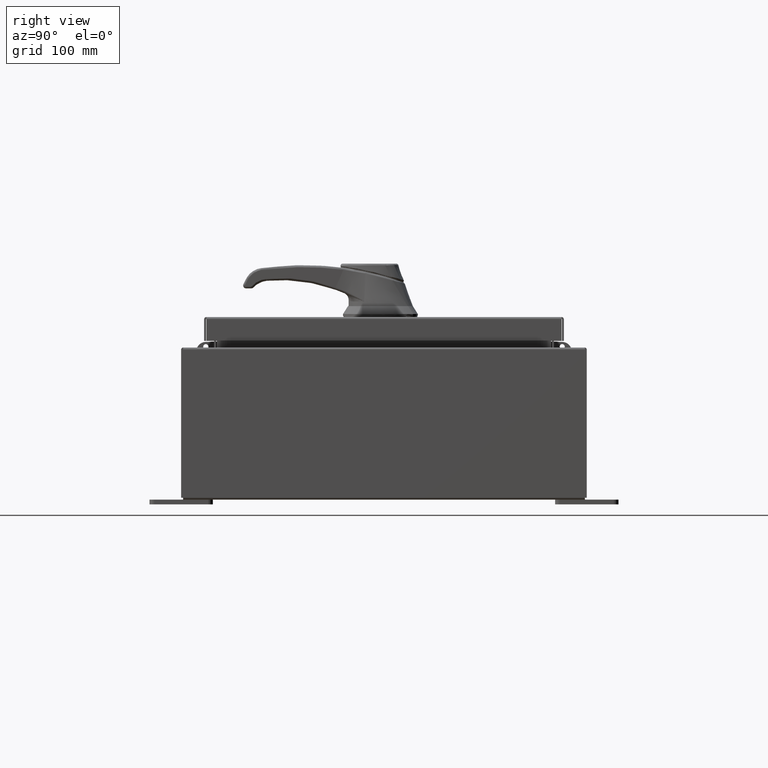
[diagram: clean part render]
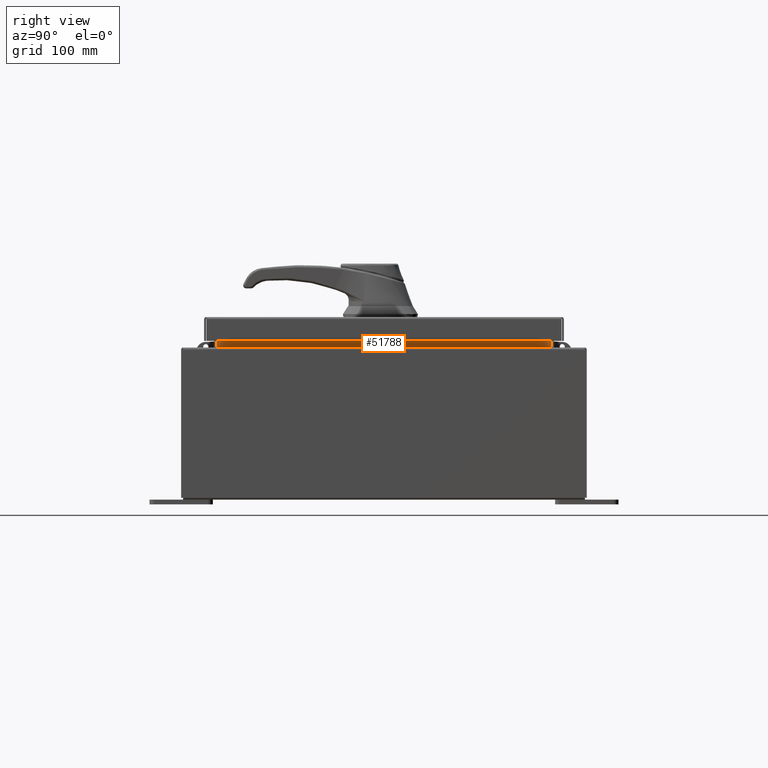
[diagram: same view with one face highlighted and labeled with its STEP entity id]
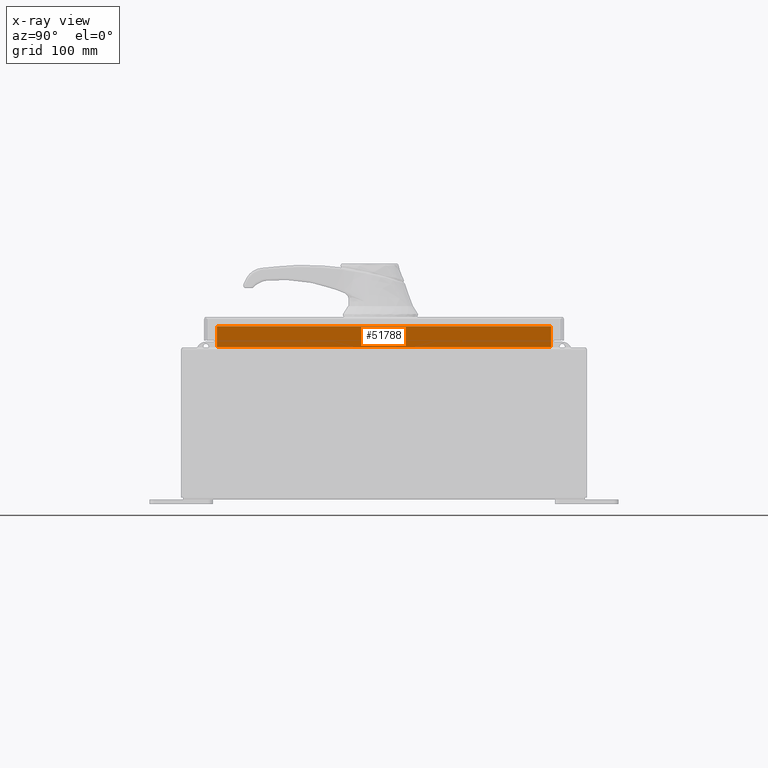
[diagram: x-ray of the same camera — body ghosted, the highlighted face saturated]
A machine part, right view. The second image highlights one B-rep face of the part: STEP entity #51788.
The next image is the same camera in x-ray: the body ghosted, the highlighted face saturated — about 0% of this face is hidden behind the body in this view.
In plain terms, the highlighted planar face has unit normal (1, 0, -0).
Its self-contained STEP definition (entity closure, byte-faithful):
#189 = CARTESIAN_POINT ( 'NONE',  ( 8.699700000000021300, -6.593750000000002700, 6.762900000000009900 ) ) ;
#6272 = LINE ( 'NONE', #33038, #89119 ) ;
#6319 = VECTOR ( 'NONE', #30968, 39.37007874015748100 ) ;
#8938 = VERTEX_POINT ( 'NONE', #58157 ) ;
#12209 = LINE ( 'NONE', #189, #56211 ) ;
#12721 = AXIS2_PLACEMENT_3D ( 'NONE', #79985, #30411, #88261 ) ;
#14101 = LINE ( 'NONE', #14636, #6319 ) ;
#14636 = CARTESIAN_POINT ( 'NONE',  ( 8.699700000000023100, -6.593750000000000900, 6.850600000000010700 ) ) ;
#17170 = VERTEX_POINT ( 'NONE', #90158 ) ;
#20057 = ORIENTED_EDGE ( 'NONE', *, *, #63872, .F. ) ;
#27999 = VERTEX_POINT ( 'NONE', #39459 ) ;
#30411 = DIRECTION ( 'NONE',  ( 1.000000000000000000, 0.0000000000000000000, -3.542869979895294000E-015 ) ) ;
#30968 = DIRECTION ( 'NONE',  ( 3.542869979895298400E-015, -0.0000000000000000000, 1.000000000000000000 ) ) ;
#31625 = VECTOR ( 'NONE', #82353, 39.37007874015748100 ) ;
#33038 = CARTESIAN_POINT ( 'NONE',  ( 8.699700000000021300, 6.593750000000000000, 5.938300000000010600 ) ) ;
#34175 = LINE ( 'NONE', #57715, #31625 ) ;
#35846 = ORIENTED_EDGE ( 'NONE', *, *, #63889, .F. ) ;
#39336 = ORIENTED_EDGE ( 'NONE', *, *, #78495, .F. ) ;
#39459 = CARTESIAN_POINT ( 'NONE',  ( 8.699700000000023100, -6.593750000000000900, 6.762900000000009900 ) ) ;
#51788 = ADVANCED_FACE ( 'NONE', ( #106889 ), #96257, .T. ) ;
#56211 = VECTOR ( 'NONE', #82700, 39.37007874015748100 ) ;
#57216 = VERTEX_POINT ( 'NONE', #82519 ) ;
#57715 = CARTESIAN_POINT ( 'NONE',  ( 8.699700000000019500, 6.593750000000000000, 5.925300000000009800 ) ) ;
#58157 = CARTESIAN_POINT ( 'NONE',  ( 8.699700000000019500, 6.593750000000000000, 5.938300000000012300 ) ) ;
#63872 = EDGE_CURVE ( 'NONE', #57216, #8938, #34175, .T. ) ;
#63889 = EDGE_CURVE ( 'NONE', #27999, #57216, #12209, .T. ) ;
#78495 = EDGE_CURVE ( 'NONE', #17170, #27999, #14101, .T. ) ;
#79985 = CARTESIAN_POINT ( 'NONE',  ( 8.699699999999998200, 0.0000000000000000000, -3.082190596409509000E-014 ) ) ;
#82353 = DIRECTION ( 'NONE',  ( -3.542869979895294000E-015, -0.0000000000000000000, -1.000000000000000000 ) ) ;
#82519 = CARTESIAN_POINT ( 'NONE',  ( 8.699700000000021300, 6.593750000000000000, 6.762900000000009900 ) ) ;
#82700 = DIRECTION ( 'NONE',  ( 0.0000000000000000000, 1.000000000000000000, 0.0000000000000000000 ) ) ;
#88261 = DIRECTION ( 'NONE',  ( -3.542869979895294000E-015, 0.0000000000000000000, -1.000000000000000000 ) ) ;
#89119 = VECTOR ( 'NONE', #90925, 39.37007874015748100 ) ;
#90158 = CARTESIAN_POINT ( 'NONE',  ( 8.699700000000019500, -6.593750000000000900, 5.938300000000012300 ) ) ;
#90925 = DIRECTION ( 'NONE',  ( 8.286174009218617400E-017, -1.000000000000000000, 2.485852202765585000E-016 ) ) ;
#95440 = EDGE_LOOP ( 'NONE', ( #20057, #35846, #39336, #105767 ) ) ;
#96257 = PLANE ( 'NONE',  #12721 ) ;
#105650 = EDGE_CURVE ( 'NONE', #8938, #17170, #6272, .T. ) ;
#105767 = ORIENTED_EDGE ( 'NONE', *, *, #105650, .F. ) ;
#106889 = FACE_OUTER_BOUND ( 'NONE', #95440, .T. ) ;